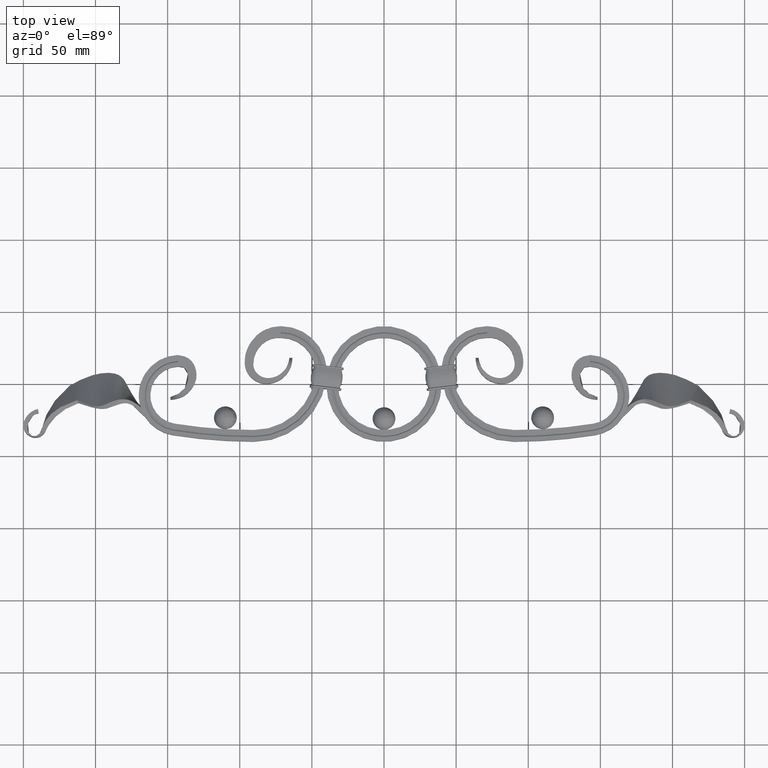
[diagram: clean part render]
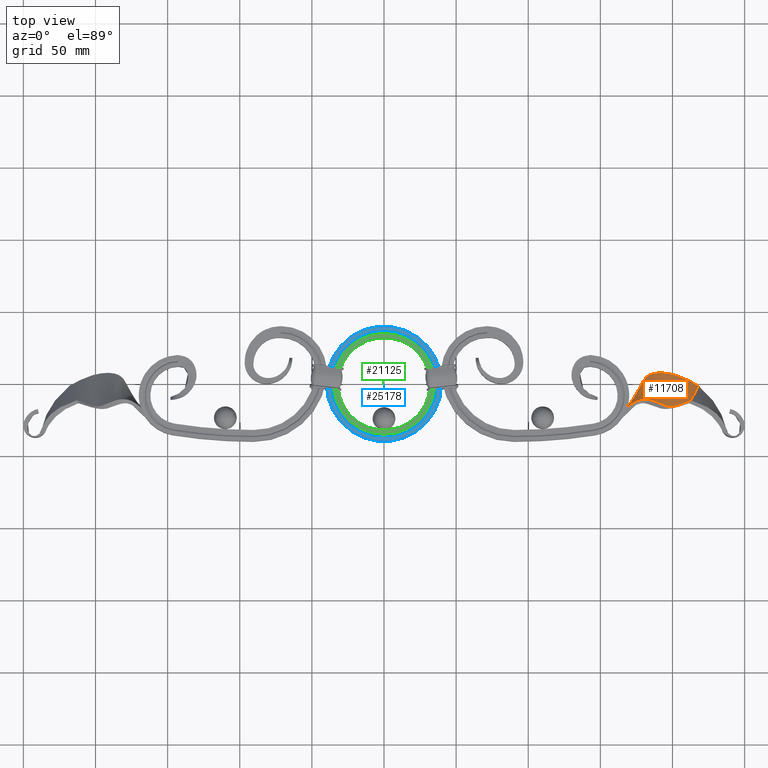
[diagram: same view with three faces highlighted in distinct colors, each labeled with its STEP entity id]
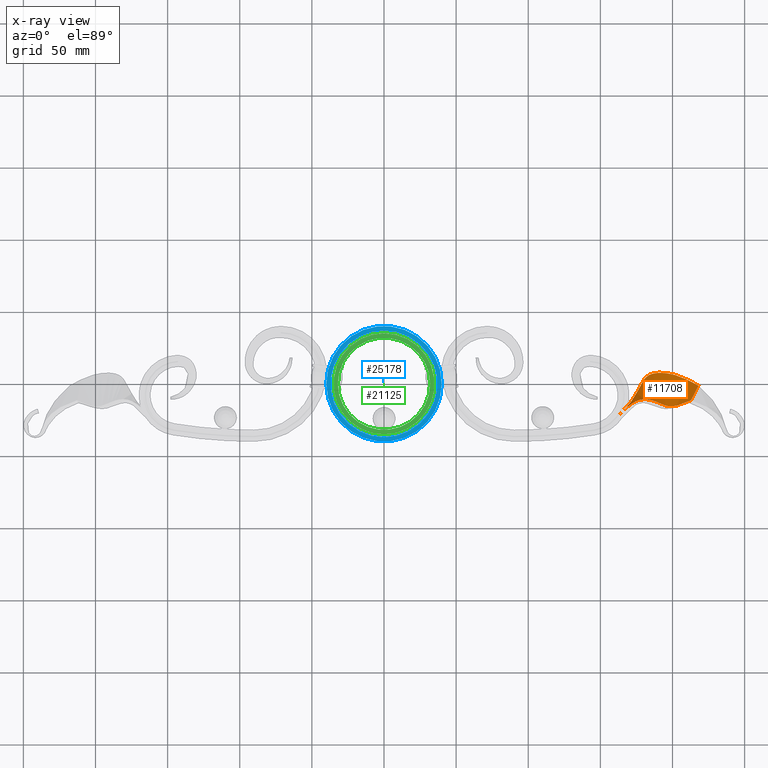
[diagram: x-ray of the same camera — body ghosted, the three highlighted faces saturated]
A machine part, top view with three faces highlighted in distinct colors.
The next image is the same camera in x-ray (body ghosted, the three faces saturated) — at least one of them is partly hidden behind the body in this view.
Their STEP definitions:

[orange] entity #11708 — the highlighted face is a freeform B-spline surface patch.
#593 = CARTESIAN_POINT ( 'NONE',  ( 171.6149143396571333, -13.66275333171913964, 7.920274763500771087 ) ) ;
#1706 = CARTESIAN_POINT ( 'NONE',  ( 167.1831973402666165, -17.21294875673260094, -7.999999999999989342 ) ) ;
#2980 = EDGE_CURVE ( 'NONE', #8917, #8864, #7401, .T. ) ;
#3561 = CARTESIAN_POINT ( 'NONE',  ( 212.8013459393394839, -11.38901857429058140, 6.524629487773481173 ) ) ;
#3681 = CARTESIAN_POINT ( 'NONE',  ( 163.0543309901838427, -21.38045195427919154, -8.000000000000000000 ) ) ;
#3880 = CARTESIAN_POINT ( 'NONE',  ( 174.3880265887873406, -9.954396228218755027, -9.240732127078587155 ) ) ;
#4044 = CARTESIAN_POINT ( 'NONE',  ( 175.7093571558010296, -9.041717303331779476, 7.332792110291057597 ) ) ;
#4791 = CARTESIAN_POINT ( 'NONE',  ( 201.6288220914520650, 8.096015690844401647, -9.006679702101710205 ) ) ;
#5107 = CARTESIAN_POINT ( 'NONE',  ( 169.0916828953050413, -14.98491455948966511, -8.000000000000000000 ) ) ;
#5178 = CARTESIAN_POINT ( 'NONE',  ( 168.8693794507052246, -15.78827443360675176, 2.558707457047509681 ) ) ;
#5822 = B_SPLINE_CURVE_WITH_KNOTS ( 'NONE', 3,
 ( #10834, #6954, #24725, #18513, #4791, #14708, #24634 ),
 .UNSPECIFIED., .F., .F.,
 ( 4, 1, 1, 1, 4 ),
 ( 0.000000000000000000, 0.2942491026262117892, 0.5013770491076067204, 0.6770014742750848358, 1.000000000000000000 ),
 .UNSPECIFIED. ) ;
#5854 = CARTESIAN_POINT ( 'NONE',  ( 207.2975542122692900, -13.91998367988226626, 8.251095216627810203 ) ) ;
#5936 = CARTESIAN_POINT ( 'NONE',  ( 167.7345819910206046, -16.81717611087921682, 7.753244256257596945 ) ) ;
#6101 = CARTESIAN_POINT ( 'NONE',  ( 201.6288220914520650, 8.096015690844396318, -9.006679702101706653 ) ) ;
#6597 = CARTESIAN_POINT ( 'NONE',  ( 207.2975542122692900, -13.91998367988226626, 8.251095216627806650 ) ) ;
#6954 = CARTESIAN_POINT ( 'NONE',  ( 167.2459098517638552, -17.15471523531424580, -8.458864146429574404 ) ) ;
#6956 = B_SPLINE_CURVE_WITH_KNOTS ( 'NONE', 3,
 ( #3681, #23314, #1706, #15453 ),
 .UNSPECIFIED., .F., .F.,
 ( 4, 4 ),
 ( 0.000000000000000000, 0.008794585335838683848 ),
 .UNSPECIFIED. ) ;
#7073 = CARTESIAN_POINT ( 'NONE',  ( 168.8288125923661767, -15.92415110017842927, 5.203169030663141292 ) ) ;
#7401 = B_SPLINE_CURVE_WITH_KNOTS ( 'NONE', 3,
 ( #10941, #11197, #20633, #5178, #7073, #22927 ),
 .UNSPECIFIED., .F., .F.,
 ( 4, 2, 4 ),
 ( 1.288786302025344226E-15, 0.007943974186860693065, 0.01588794837372009550 ),
 .UNSPECIFIED. ) ;
#7450 = DIRECTION ( 'NONE',  ( -0.2915743777421412886, -0.5728527676557217951, 0.7660444431189763481 ) ) ;
#7475 = VERTEX_POINT ( 'NONE', #24042 ) ;
#7909 = CARTESIAN_POINT ( 'NONE',  ( 163.0543309901838427, -21.38045195427919154, 8.000000000000000000 ) ) ;
#7998 = CARTESIAN_POINT ( 'NONE',  ( 188.2420989933974056, -11.73649138957724247, 15.48438976817710255 ) ) ;
#8864 = VERTEX_POINT ( 'NONE', #17029 ) ;
#8917 = VERTEX_POINT ( 'NONE', #5107 ) ;
#9012 = ORIENTED_EDGE ( 'NONE', *, *, #23194, .F. ) ;
#10219 = VERTEX_POINT ( 'NONE', #3561 ) ;
#10834 = CARTESIAN_POINT ( 'NONE',  ( 163.0543309901838427, -21.38045195427919154, -8.000000000000000000 ) ) ;
#10941 = CARTESIAN_POINT ( 'NONE',  ( 169.0916828953050413, -14.98491455948966511, -8.000000000000000000 ) ) ;
#11067 = CARTESIAN_POINT ( 'NONE',  ( 163.0543309901838427, -21.38045195427919154, -8.000000000000000000 ) ) ;
#11197 = CARTESIAN_POINT ( 'NONE',  ( 169.0228695660795211, -15.24813301921356690, -5.365777674370403538 ) ) ;
#11708 = ADVANCED_FACE ( 'NONE', ( #20109 ), #24963, .T. ) ;
#12175 = CARTESIAN_POINT ( 'NONE',  ( 168.7934699943005512, -16.04047117970407044, 7.848512071050191885 ) ) ;
#13574 = CARTESIAN_POINT ( 'NONE',  ( 198.8011783669315093, -17.82711386483734373, 10.91629449084705783 ) ) ;
#13690 = ORIENTED_EDGE ( 'NONE', *, *, #21887, .F. ) ;
#13837 = CARTESIAN_POINT ( 'NONE',  ( 180.9172266837508687, 8.228429038972816301, -3.839813726123197046 ) ) ;
#13892 = B_SPLINE_CURVE_WITH_KNOTS ( 'NONE', 3,
 ( #22090, #6597, #24107, #18247, #22442, #593, #12175 ),
 .UNSPECIFIED., .F., .F.,
 ( 4, 1, 1, 1, 4 ),
 ( 0.000000000000000000, 0.3229985257249151642, 0.4986229508923932796, 0.7057508973737882663, 0.8803601069187638739 ),
 .UNSPECIFIED. ) ;
#13924 = CARTESIAN_POINT ( 'NONE',  ( 218.0496847386980335, -1.077668756487591750, -7.264170488368086431 ) ) ;
#14708 = CARTESIAN_POINT ( 'NONE',  ( 211.5942614359522338, 2.528720117563169278, -7.949191417245526026 ) ) ;
#15453 = CARTESIAN_POINT ( 'NONE',  ( 169.0916828953050413, -14.98491455948966511, -8.000000000000000000 ) ) ;
#15649 = CARTESIAN_POINT ( 'NONE',  ( 167.2459098517638552, -17.15471523531424936, -8.458864146429574404 ) ) ;
#15729 = CARTESIAN_POINT ( 'NONE',  ( 211.5942614359522338, 2.528720117563164393, -7.949191417245524249 ) ) ;
#17029 = CARTESIAN_POINT ( 'NONE',  ( 168.7934699943005512, -16.04047117970407044, 7.848512071050191885 ) ) ;
#17667 = CARTESIAN_POINT ( 'NONE',  ( 163.0543309901838427, -21.38045195427919154, -8.000000000000000000 ) ) ;
#17745 = CARTESIAN_POINT ( 'NONE',  ( 212.8013459393394839, -11.38901857429058140, 6.524629487773481173 ) ) ;
#18069 = VECTOR ( 'NONE', #7450, 1000.000000000000114 ) ;
#18247 = CARTESIAN_POINT ( 'NONE',  ( 188.2420989933974056, -11.73649138957723892, 15.48438976817710611 ) ) ;
#18373 = EDGE_CURVE ( 'NONE', #25325, #8917, #6956, .T. ) ;
#18426 = ORIENTED_EDGE ( 'NONE', *, *, #18373, .T. ) ;
#18513 = CARTESIAN_POINT ( 'NONE',  ( 180.9172266837508687, 8.228429038972803866, -3.839813726123189497 ) ) ;
#19211 = CARTESIAN_POINT ( 'NONE',  ( 212.8013459393394839, -11.38901857429058140, 6.524629487773481173 ) ) ;
#20109 = FACE_OUTER_BOUND ( 'NONE', #24748, .T. ) ;
#20545 = EDGE_CURVE ( 'NONE', #10219, #8864, #13892, .T. ) ;
#20633 = CARTESIAN_POINT ( 'NONE',  ( 168.9664298085222640, -15.44980996951345809, -2.725671219001774226 ) ) ;
#21887 = EDGE_CURVE ( 'NONE', #7475, #10219, #24643, .T. ) ;
#22090 = CARTESIAN_POINT ( 'NONE',  ( 212.8013459393394839, -11.38901857429058140, 6.524629487773481173 ) ) ;
#22442 = CARTESIAN_POINT ( 'NONE',  ( 177.9241468578032368, -9.517938546279165024, 8.773344766804870076 ) ) ;
#22927 = CARTESIAN_POINT ( 'NONE',  ( 168.7934699943005512, -16.04047117970407044, 7.848512071050191885 ) ) ;
#23194 = EDGE_CURVE ( 'NONE', #25325, #7475, #5822, .T. ) ;
#23314 = CARTESIAN_POINT ( 'NONE',  ( 165.1200546840135530, -19.29789434233396150, -8.000000000000000000 ) ) ;
#24042 = CARTESIAN_POINT ( 'NONE',  ( 218.0496847386980335, -1.077668756487588198, -7.264170488368089984 ) ) ;
#24107 = CARTESIAN_POINT ( 'NONE',  ( 198.8011783669315093, -17.82711386483734373, 10.91629449084705783 ) ) ;
#24196 = ORIENTED_EDGE ( 'NONE', *, *, #20545, .F. ) ;
#24324 = ORIENTED_EDGE ( 'NONE', *, *, #2980, .T. ) ;
#24634 = CARTESIAN_POINT ( 'NONE',  ( 218.0496847386980335, -1.077668756487588198, -7.264170488368089984 ) ) ;
#24643 = LINE ( 'NONE', #19211, #18069 ) ;
#24725 = CARTESIAN_POINT ( 'NONE',  ( 174.3880265887873406, -9.954396228218747922, -9.240732127078588931 ) ) ;
#24748 = EDGE_LOOP ( 'NONE', ( #18426, #24324, #24196, #13690, #9012 ) ) ;
#24963 = B_SPLINE_SURFACE_WITH_KNOTS ( 'NONE', 1, 3, ( 
 ( #17667, #15649, #3880, #13837, #6101, #15729, #13924 ),
 ( #7909, #5936, #4044, #7998, #13574, #5854, #17745 ) ),
 .UNSPECIFIED., .F., .F., .F.,
 ( 2, 2 ),
 ( 4, 1, 1, 1, 4 ),
 ( 0.000000000000000000, 1.000000000000000000 ),
 ( 0.000000000000000000, 0.2942491026262117892, 0.5013770491076067204, 0.6770014742750848358, 1.000000000000000000 ),
 .UNSPECIFIED. ) ;
#25325 = VERTEX_POINT ( 'NONE', #11067 ) ;

[blue] entity #25178 — the highlighted planar face has unit normal (0, 0, 1).
#378 = CIRCLE ( 'NONE', #22843, 37.00000000000000711 ) ;
#1816 = EDGE_LOOP ( 'NONE', ( #18250 ) ) ;
#2901 = CARTESIAN_POINT ( 'NONE',  ( 0.000000000000000000, 0.000000000000000000, 8.000000000000000000 ) ) ;
#4210 = EDGE_CURVE ( 'NONE', #21088, #21088, #10612, .T. ) ;
#4703 = DIRECTION ( 'NONE',  ( 0.000000000000000000, 0.000000000000000000, 1.000000000000000000 ) ) ;
#7158 = CARTESIAN_POINT ( 'NONE',  ( 0.000000000000000000, 0.000000000000000000, 8.000000000000000000 ) ) ;
#9840 = DIRECTION ( 'NONE',  ( 1.000000000000000000, 0.000000000000000000, 0.000000000000000000 ) ) ;
#9925 = DIRECTION ( 'NONE',  ( 0.000000000000000000, 0.000000000000000000, 1.000000000000000000 ) ) ;
#10612 = CIRCLE ( 'NONE', #21653, 40.00000000000000000 ) ;
#11650 = ORIENTED_EDGE ( 'NONE', *, *, #4210, .T. ) ;
#11903 = FACE_OUTER_BOUND ( 'NONE', #12437, .T. ) ;
#12437 = EDGE_LOOP ( 'NONE', ( #11650 ) ) ;
#14060 = FACE_BOUND ( 'NONE', #1816, .T. ) ;
#14521 = PLANE ( 'NONE',  #20137 ) ;
#17613 = CARTESIAN_POINT ( 'NONE',  ( 0.000000000000000000, 0.000000000000000000, 8.000000000000000000 ) ) ;
#18250 = ORIENTED_EDGE ( 'NONE', *, *, #19758, .F. ) ;
#18416 = DIRECTION ( 'NONE',  ( 1.000000000000000000, 0.000000000000000000, -0.000000000000000000 ) ) ;
#19758 = EDGE_CURVE ( 'NONE', #24254, #24254, #378, .T. ) ;
#20137 = AXIS2_PLACEMENT_3D ( 'NONE', #2901, #4703, #18416 ) ;
#21088 = VERTEX_POINT ( 'NONE', #21978 ) ;
#21416 = DIRECTION ( 'NONE',  ( 0.000000000000000000, 0.000000000000000000, 1.000000000000000000 ) ) ;
#21653 = AXIS2_PLACEMENT_3D ( 'NONE', #17613, #9925, #9840 ) ;
#21978 = CARTESIAN_POINT ( 'NONE',  ( 40.00000000000000000, 0.000000000000000000, 8.000000000000000000 ) ) ;
#22843 = AXIS2_PLACEMENT_3D ( 'NONE', #7158, #21416, #23286 ) ;
#23286 = DIRECTION ( 'NONE',  ( 0.000000000000000000, -1.000000000000000000, 0.000000000000000000 ) ) ;
#24083 = CARTESIAN_POINT ( 'NONE',  ( 0.000000000000000000, -37.00000000000000711, 8.000000000000000000 ) ) ;
#24254 = VERTEX_POINT ( 'NONE', #24083 ) ;
#25178 = ADVANCED_FACE ( 'NONE', ( #14060, #11903 ), #14521, .T. ) ;

[green] entity #21125 — the highlighted planar face has unit normal (0, 0, 1).
#544 = ORIENTED_EDGE ( 'NONE', *, *, #6779, .F. ) ;
#617 = FACE_BOUND ( 'NONE', #23640, .T. ) ;
#1268 = CARTESIAN_POINT ( 'NONE',  ( 0.000000000000000000, 0.000000000000000000, 8.000000000000000000 ) ) ;
#2176 = EDGE_LOOP ( 'NONE', ( #14366 ) ) ;
#6779 = EDGE_CURVE ( 'NONE', #25148, #25148, #10514, .T. ) ;
#8502 = DIRECTION ( 'NONE',  ( 0.000000000000000000, -1.000000000000000000, 0.000000000000000000 ) ) ;
#8987 = CARTESIAN_POINT ( 'NONE',  ( 0.000000000000000000, 0.000000000000000000, 8.000000000000000000 ) ) ;
#10366 = CARTESIAN_POINT ( 'NONE',  ( 0.000000000000000000, -35.00000000000000000, 8.000000000000000000 ) ) ;
#10514 = CIRCLE ( 'NONE', #16150, 32.00000000000000000 ) ;
#10968 = DIRECTION ( 'NONE',  ( 1.000000000000000000, 0.000000000000000000, 0.000000000000000000 ) ) ;
#12411 = CARTESIAN_POINT ( 'NONE',  ( 32.00000000000000000, 0.000000000000000000, 8.000000000000000000 ) ) ;
#12593 = DIRECTION ( 'NONE',  ( 0.000000000000000000, 0.000000000000000000, 1.000000000000000000 ) ) ;
#13990 = EDGE_CURVE ( 'NONE', #20800, #20800, #14850, .T. ) ;
#14366 = ORIENTED_EDGE ( 'NONE', *, *, #13990, .T. ) ;
#14850 = CIRCLE ( 'NONE', #20719, 35.00000000000000000 ) ;
#16150 = AXIS2_PLACEMENT_3D ( 'NONE', #1268, #22777, #10968 ) ;
#18913 = DIRECTION ( 'NONE',  ( 0.000000000000000000, 0.000000000000000000, 1.000000000000000000 ) ) ;
#19504 = AXIS2_PLACEMENT_3D ( 'NONE', #8987, #18913, #23108 ) ;
#20719 = AXIS2_PLACEMENT_3D ( 'NONE', #21909, #12593, #8502 ) ;
#20728 = PLANE ( 'NONE',  #19504 ) ;
#20800 = VERTEX_POINT ( 'NONE', #10366 ) ;
#21125 = ADVANCED_FACE ( 'NONE', ( #23118, #617 ), #20728, .T. ) ;
#21909 = CARTESIAN_POINT ( 'NONE',  ( 0.000000000000000000, 0.000000000000000000, 8.000000000000000000 ) ) ;
#22777 = DIRECTION ( 'NONE',  ( 0.000000000000000000, 0.000000000000000000, 1.000000000000000000 ) ) ;
#23108 = DIRECTION ( 'NONE',  ( 1.000000000000000000, 0.000000000000000000, -0.000000000000000000 ) ) ;
#23118 = FACE_OUTER_BOUND ( 'NONE', #2176, .T. ) ;
#23640 = EDGE_LOOP ( 'NONE', ( #544 ) ) ;
#25148 = VERTEX_POINT ( 'NONE', #12411 ) ;